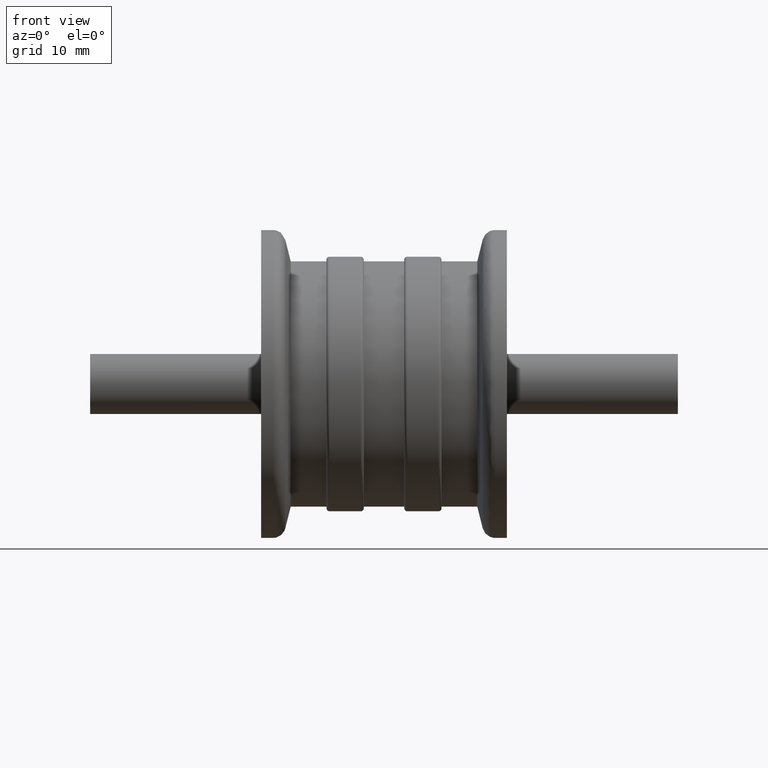
[diagram: clean part render]
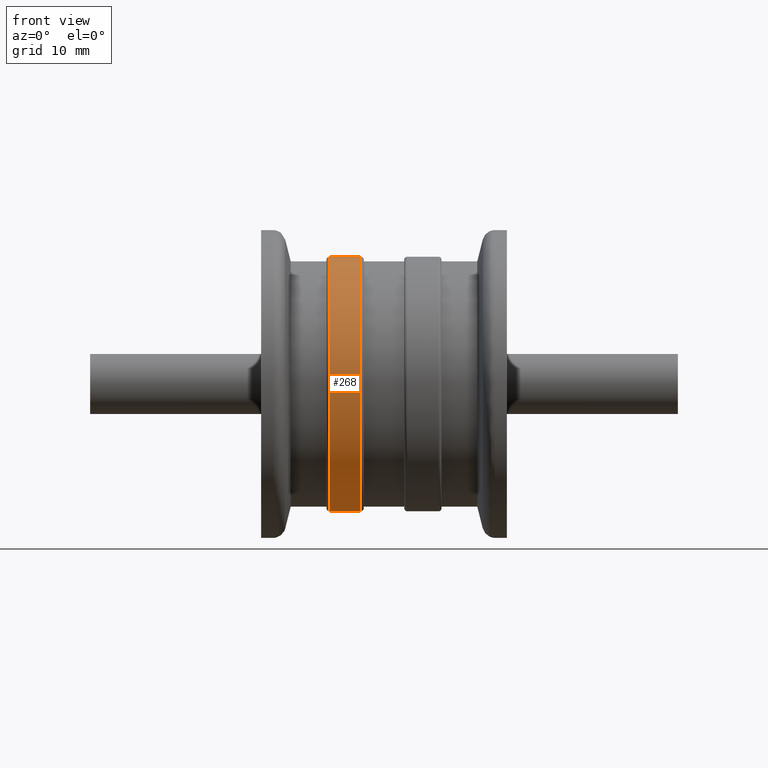
[diagram: same view with one face highlighted and labeled with its STEP entity id]
A machine part, front view. The second image highlights one B-rep face of the part: STEP entity #268.
In plain terms, the highlighted cylindrical surface (bore or boss wall) has radius 20.5 mm, axis along (1, 0, 0).
Its self-contained STEP definition (entity closure, byte-faithful):
#28=CYLINDRICAL_SURFACE('',#311,20.5);
#46=FACE_BOUND('',#107,.T.);
#69=FACE_OUTER_BOUND('',#106,.T.);
#106=EDGE_LOOP('',(#226));
#107=EDGE_LOOP('',(#227));
#144=CIRCLE('',#309,20.5);
#146=CIRCLE('',#312,20.5);
#168=VERTEX_POINT('',#473);
#170=VERTEX_POINT('',#478);
#192=EDGE_CURVE('',#168,#168,#144,.T.);
#194=EDGE_CURVE('',#170,#170,#146,.T.);
#226=ORIENTED_EDGE('',*,*,#194,.F.);
#227=ORIENTED_EDGE('',*,*,#192,.F.);
#268=ADVANCED_FACE('',(#69,#46),#28,.T.);
#309=AXIS2_PLACEMENT_3D('',#474,#386,#387);
#311=AXIS2_PLACEMENT_3D('',#477,#390,#391);
#312=AXIS2_PLACEMENT_3D('',#479,#392,#393);
#386=DIRECTION('center_axis',(1.,2.24855296126614E-16,0.));
#387=DIRECTION('ref_axis',(2.23398535442867E-16,-1.,1.83697019872103E-16));
#390=DIRECTION('center_axis',(1.,2.24855296126614E-16,0.));
#391=DIRECTION('ref_axis',(-2.24855296126614E-16,1.,0.));
#392=DIRECTION('center_axis',(-1.,-2.24855296126614E-16,0.));
#393=DIRECTION('ref_axis',(2.23398535442867E-16,-1.,1.83697019872103E-16));
#473=CARTESIAN_POINT('',(-3.75000000000001,20.5,-1.25526296912604E-15));
#474=CARTESIAN_POINT('Origin',(-3.75,-8.43207360474803E-16,0.));
#477=CARTESIAN_POINT('Origin',(-6.25,-1.40534560079134E-15,0.));
#478=CARTESIAN_POINT('',(-8.75000000000001,20.5,-6.27631484563019E-15));
#479=CARTESIAN_POINT('Origin',(-8.75,-1.96748384110787E-15,0.));